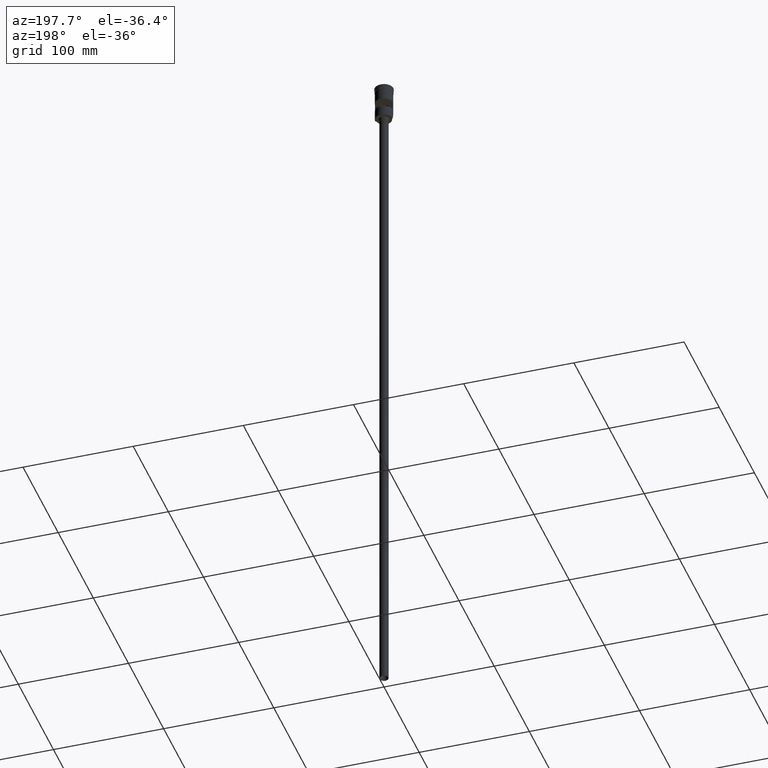
[diagram: clean part render]
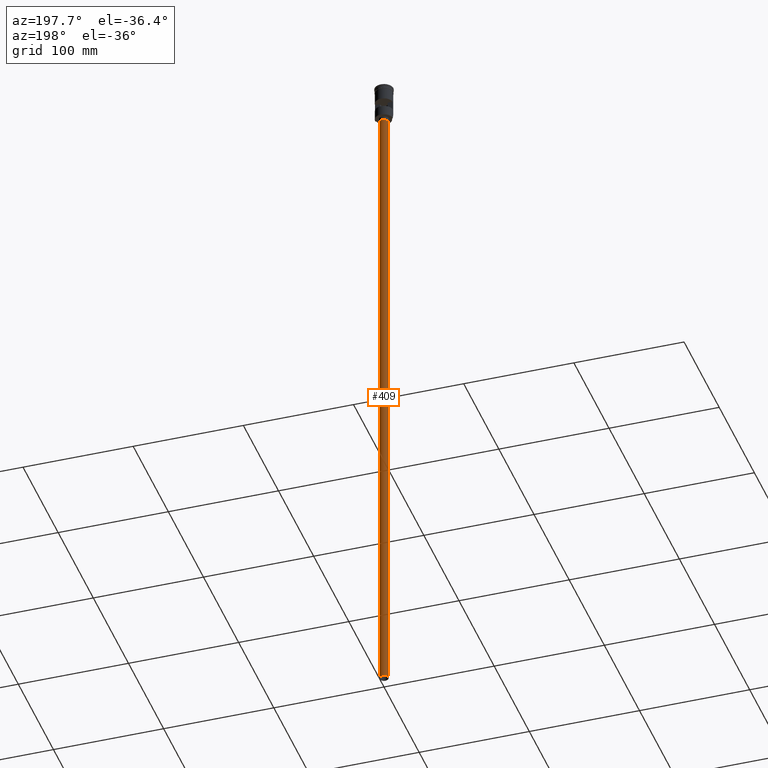
[diagram: same view with one face highlighted and labeled with its STEP entity id]
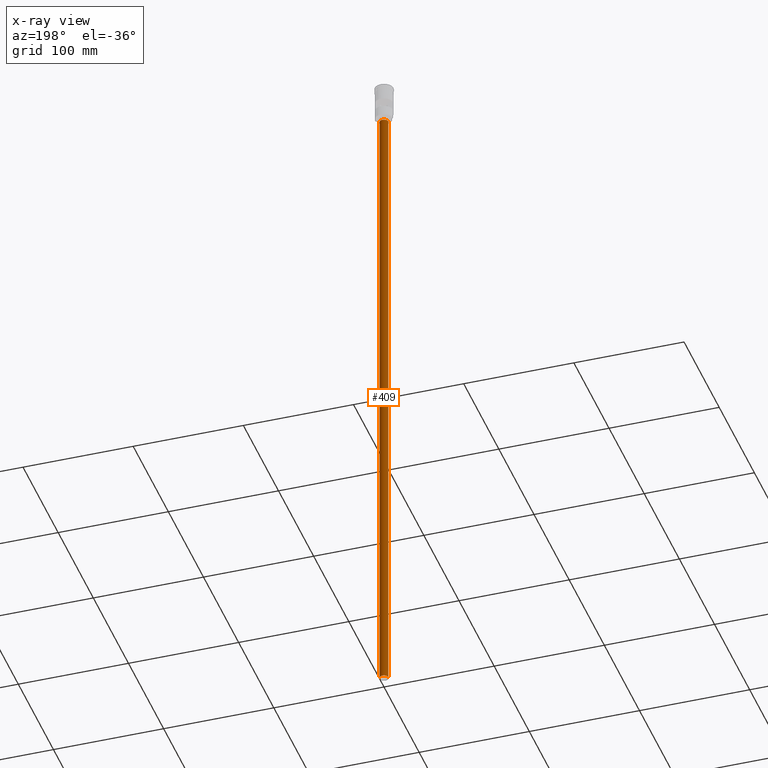
[diagram: x-ray of the same camera — body ghosted, the highlighted face saturated]
A machine part, auxiliary view. The second image highlights one B-rep face of the part: STEP entity #409.
The next image is the same camera in x-ray: the body ghosted, the highlighted face saturated — about 0% of this face is hidden behind the body in this view.
In plain terms, the highlighted cylindrical surface (edge-blend (fillet) strip) has radius 4 mm, axis along (-0, -0, 1).
Its self-contained STEP definition (entity closure, byte-faithful):
#4 = CIRCLE ( 'NONE', #31, 4.000000000000000000 ) ;
#17 = VERTEX_POINT ( 'NONE', #533 ) ;
#31 = AXIS2_PLACEMENT_3D ( 'NONE', #1055, #1548, #449 ) ;
#42 = LINE ( 'NONE', #539, #1067 ) ;
#49 = DIRECTION ( 'NONE',  ( -0.000000000000000000, -0.000000000000000000, 1.000000000000000000 ) ) ;
#102 = DIRECTION ( 'NONE',  ( 0.000000000000000000, 0.000000000000000000, -1.000000000000000000 ) ) ;
#108 = ORIENTED_EDGE ( 'NONE', *, *, #1090, .F. ) ;
#238 = VERTEX_POINT ( 'NONE', #1181 ) ;
#255 = DIRECTION ( 'NONE',  ( -0.000000000000000000, -0.000000000000000000, 1.000000000000000000 ) ) ;
#265 = EDGE_CURVE ( 'NONE', #1004, #17, #459, .T. ) ;
#269 = CARTESIAN_POINT ( 'NONE',  ( -4.000000000000000000, 4.898587196589412829E-16, -632.0000000000000000 ) ) ;
#289 = CYLINDRICAL_SURFACE ( 'NONE', #1164, 4.000000000000000000 ) ;
#300 = EDGE_LOOP ( 'NONE', ( #1229, #404, #1104, #108 ) ) ;
#404 = ORIENTED_EDGE ( 'NONE', *, *, #265, .T. ) ;
#409 = ADVANCED_FACE ( 'NONE', ( #412 ), #289, .T. ) ;
#412 = FACE_OUTER_BOUND ( 'NONE', #300, .T. ) ;
#449 = DIRECTION ( 'NONE',  ( -1.000000000000000000, 0.000000000000000000, 0.000000000000000000 ) ) ;
#459 = LINE ( 'NONE', #269, #1267 ) ;
#532 = AXIS2_PLACEMENT_3D ( 'NONE', #1177, #102, #593 ) ;
#533 = CARTESIAN_POINT ( 'NONE',  ( -4.000000000000000000, 4.898587196589412829E-16, -35.00000000000000000 ) ) ;
#539 = CARTESIAN_POINT ( 'NONE',  ( 4.000000000000000000, 0.000000000000000000, -632.0000000000000000 ) ) ;
#593 = DIRECTION ( 'NONE',  ( -1.000000000000000000, 0.000000000000000000, 0.000000000000000000 ) ) ;
#797 = DIRECTION ( 'NONE',  ( -0.000000000000000000, -0.000000000000000000, 1.000000000000000000 ) ) ;
#856 = CARTESIAN_POINT ( 'NONE',  ( -4.000000000000000000, 4.898587196589412829E-16, -632.0000000000000000 ) ) ;
#858 = EDGE_CURVE ( 'NONE', #17, #238, #1221, .T. ) ;
#883 = EDGE_CURVE ( 'NONE', #1004, #1475, #4, .T. ) ;
#1004 = VERTEX_POINT ( 'NONE', #856 ) ;
#1040 = DIRECTION ( 'NONE',  ( 1.000000000000000000, 0.000000000000000000, 0.000000000000000000 ) ) ;
#1049 = CARTESIAN_POINT ( 'NONE',  ( 4.000000000000000000, 0.000000000000000000, -632.0000000000000000 ) ) ;
#1055 = CARTESIAN_POINT ( 'NONE',  ( 0.000000000000000000, 0.000000000000000000, -632.0000000000000000 ) ) ;
#1067 = VECTOR ( 'NONE', #49, 1000.000000000000000 ) ;
#1090 = EDGE_CURVE ( 'NONE', #1475, #238, #42, .T. ) ;
#1104 = ORIENTED_EDGE ( 'NONE', *, *, #858, .T. ) ;
#1164 = AXIS2_PLACEMENT_3D ( 'NONE', #1284, #797, #1040 ) ;
#1177 = CARTESIAN_POINT ( 'NONE',  ( 0.000000000000000000, 0.000000000000000000, -35.00000000000000000 ) ) ;
#1181 = CARTESIAN_POINT ( 'NONE',  ( 4.000000000000000000, 0.000000000000000000, -35.00000000000000000 ) ) ;
#1221 = CIRCLE ( 'NONE', #532, 4.000000000000000000 ) ;
#1229 = ORIENTED_EDGE ( 'NONE', *, *, #883, .F. ) ;
#1267 = VECTOR ( 'NONE', #255, 1000.000000000000000 ) ;
#1284 = CARTESIAN_POINT ( 'NONE',  ( 0.000000000000000000, 0.000000000000000000, -632.0000000000000000 ) ) ;
#1475 = VERTEX_POINT ( 'NONE', #1049 ) ;
#1548 = DIRECTION ( 'NONE',  ( 0.000000000000000000, 0.000000000000000000, -1.000000000000000000 ) ) ;